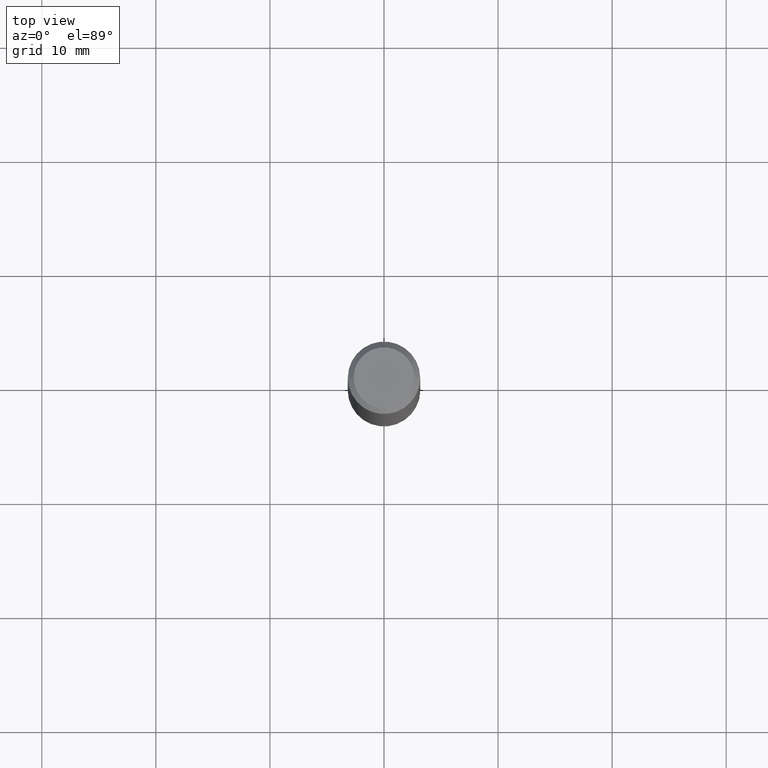
[diagram: clean part render]
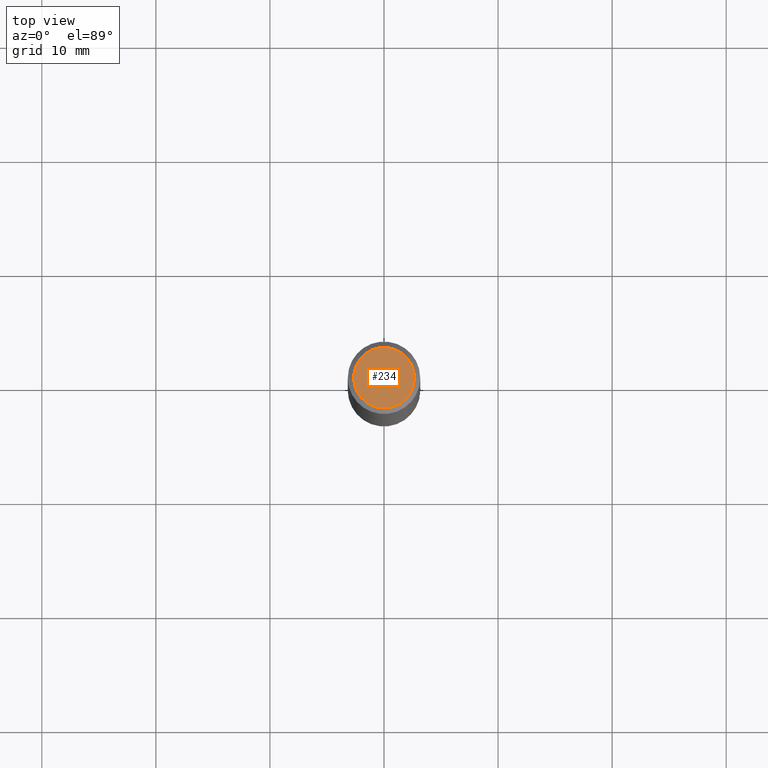
[diagram: same view with one face highlighted and labeled with its STEP entity id]
A machine part, top view. The second image highlights one B-rep face of the part: STEP entity #234.
In plain terms, the highlighted planar face has unit normal (0, -0, -1).
Its self-contained STEP definition (entity closure, byte-faithful):
#28 = AXIS2_PLACEMENT_3D ( 'NONE', #77, #191, #132 ) ;
#40 = CARTESIAN_POINT ( 'NONE',  ( 1.252621697202263706E-45, -1.788411804456536750E-31, -5.122214988120493535E-17 ) ) ;
#48 = CIRCLE ( 'NONE', #270, 0.1050000000000000377 ) ;
#63 = AXIS2_PLACEMENT_3D ( 'NONE', #40, #99, #283 ) ;
#74 = EDGE_CURVE ( 'NONE', #376, #275, #85, .T. ) ;
#77 = CARTESIAN_POINT ( 'NONE',  ( 7.332110811570581229E-16, 0.1050000000000000377, -3.922166155191328542E-16 ) ) ;
#85 = CIRCLE ( 'NONE', #63, 0.1050000000000000377 ) ;
#95 = ORIENTED_EDGE ( 'NONE', *, *, #139, .T. ) ;
#99 = DIRECTION ( 'NONE',  ( -2.445468806185136597E-29, 3.491481338843145583E-15, 1.000000000000000000 ) ) ;
#107 = FACE_OUTER_BOUND ( 'NONE', #353, .T. ) ;
#128 = DIRECTION ( 'NONE',  ( 1.000000000000000000, -6.982962677686267499E-15, 4.874400871621236533E-29 ) ) ;
#132 = DIRECTION ( 'NONE',  ( -1.000000000000000000, 6.982962677686265922E-15, -4.876176775795935793E-29 ) ) ;
#139 = EDGE_CURVE ( 'NONE', #275, #376, #48, .T. ) ;
#191 = DIRECTION ( 'NONE',  ( 2.438088387897960049E-29, -3.491481338843145188E-15, -1.000000000000000000 ) ) ;
#207 = CARTESIAN_POINT ( 'NONE',  ( -0.1050000000000000377, 7.681258945454890818E-16, -5.122214988121018004E-17 ) ) ;
#225 = CARTESIAN_POINT ( 'NONE',  ( 0.1050000000000000377, -8.238720831321576644E-16, -5.122214988119949344E-17 ) ) ;
#234 = ADVANCED_FACE ( 'NONE', ( #107 ), #366, .F. ) ;
#242 = ORIENTED_EDGE ( 'NONE', *, *, #74, .T. ) ;
#270 = AXIS2_PLACEMENT_3D ( 'NONE', #391, #298, #128 ) ;
#275 = VERTEX_POINT ( 'NONE', #207 ) ;
#283 = DIRECTION ( 'NONE',  ( 1.000000000000000000, -6.982962677686267499E-15, 4.874400871621236533E-29 ) ) ;
#298 = DIRECTION ( 'NONE',  ( -2.445468806185136597E-29, 3.491481338843145583E-15, 1.000000000000000000 ) ) ;
#353 = EDGE_LOOP ( 'NONE', ( #95, #242 ) ) ;
#366 = PLANE ( 'NONE',  #28 ) ;
#376 = VERTEX_POINT ( 'NONE', #225 ) ;
#391 = CARTESIAN_POINT ( 'NONE',  ( 1.252621697202263706E-45, -1.788411804456536750E-31, -5.122214988120493535E-17 ) ) ;